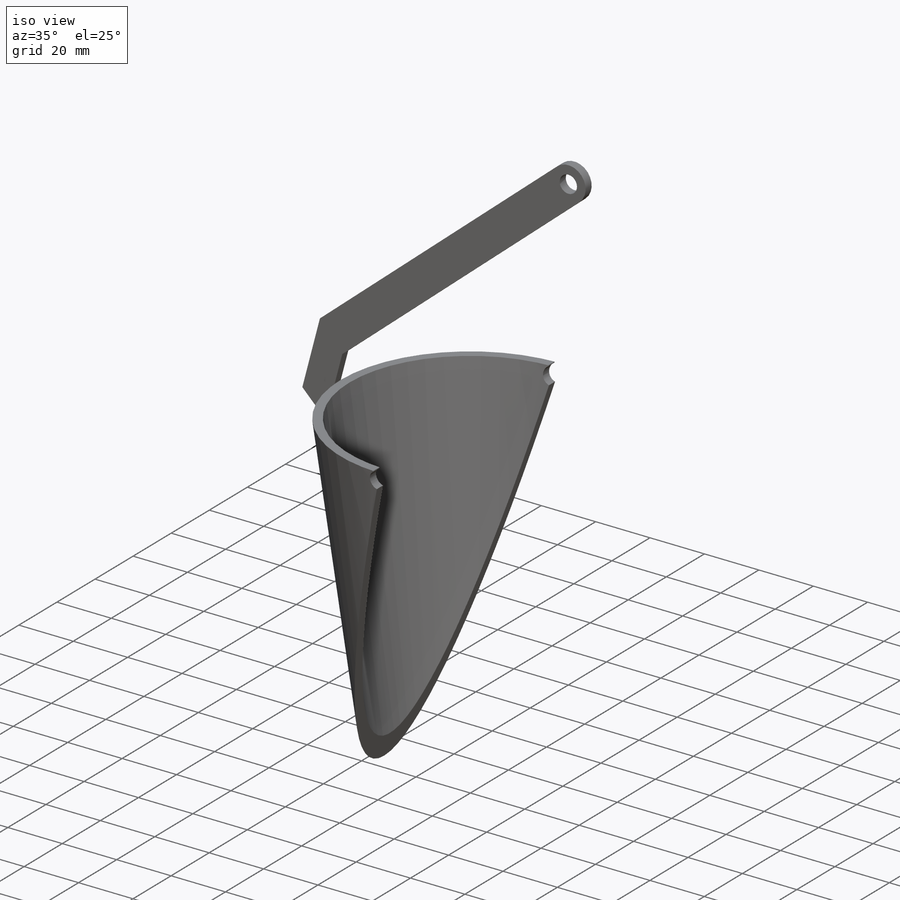
[diagram: iso view]
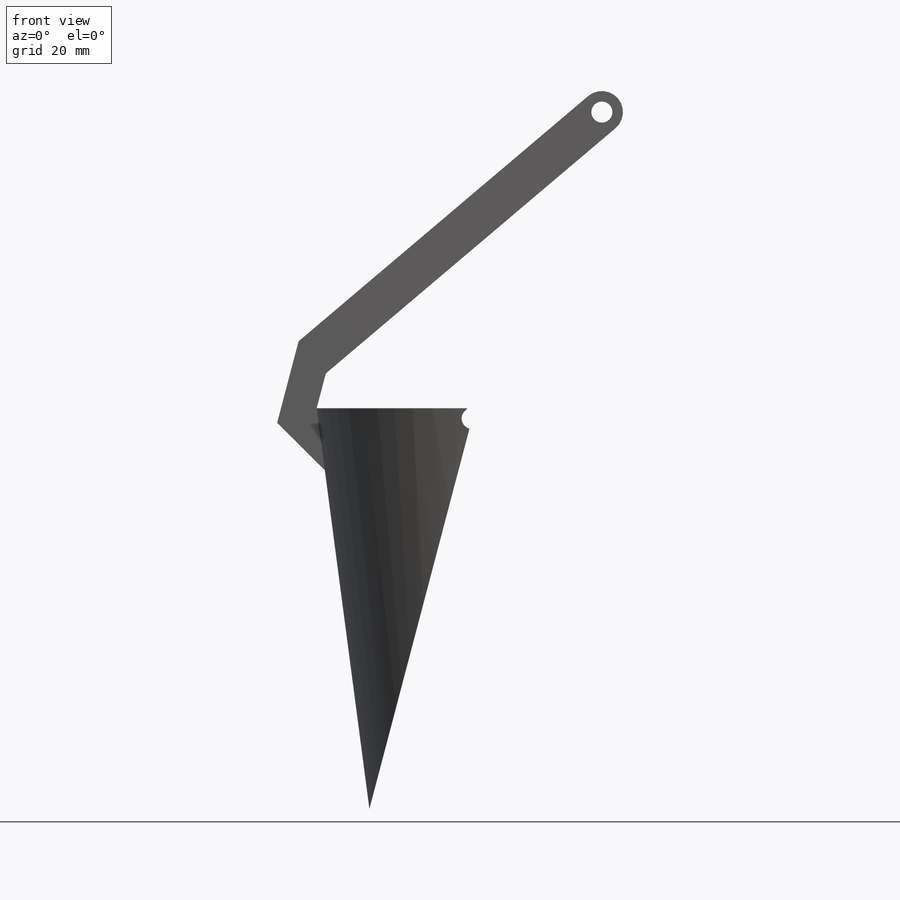
[diagram: front view]
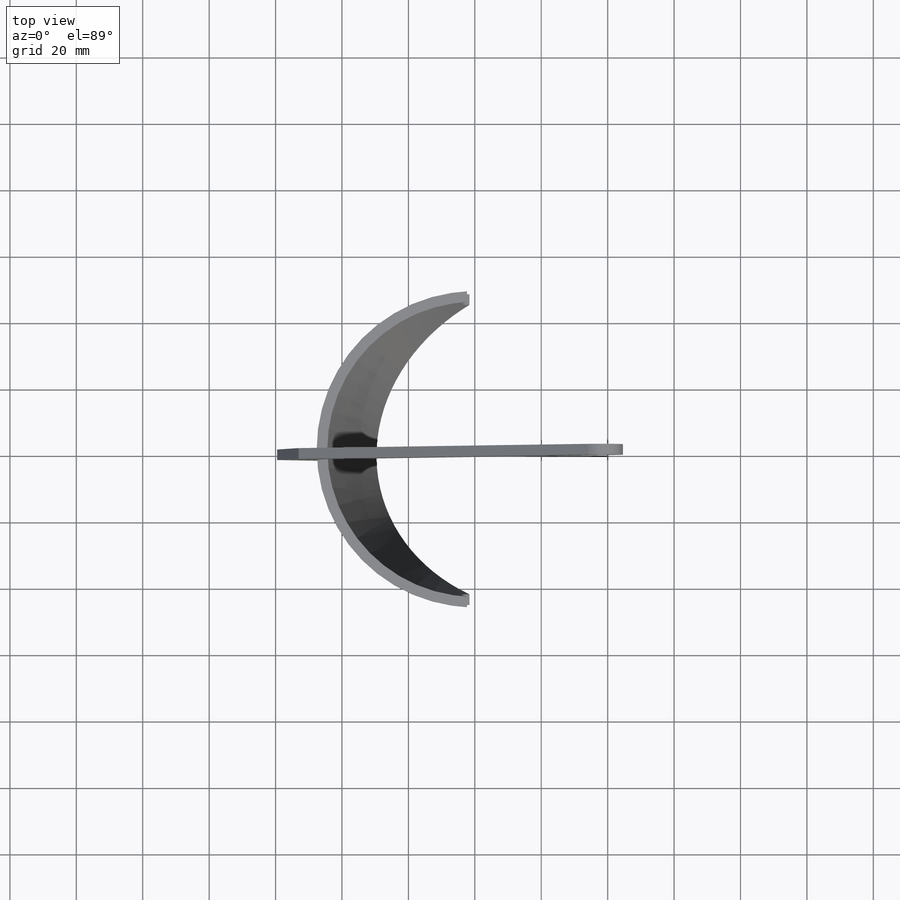
[diagram: top view]
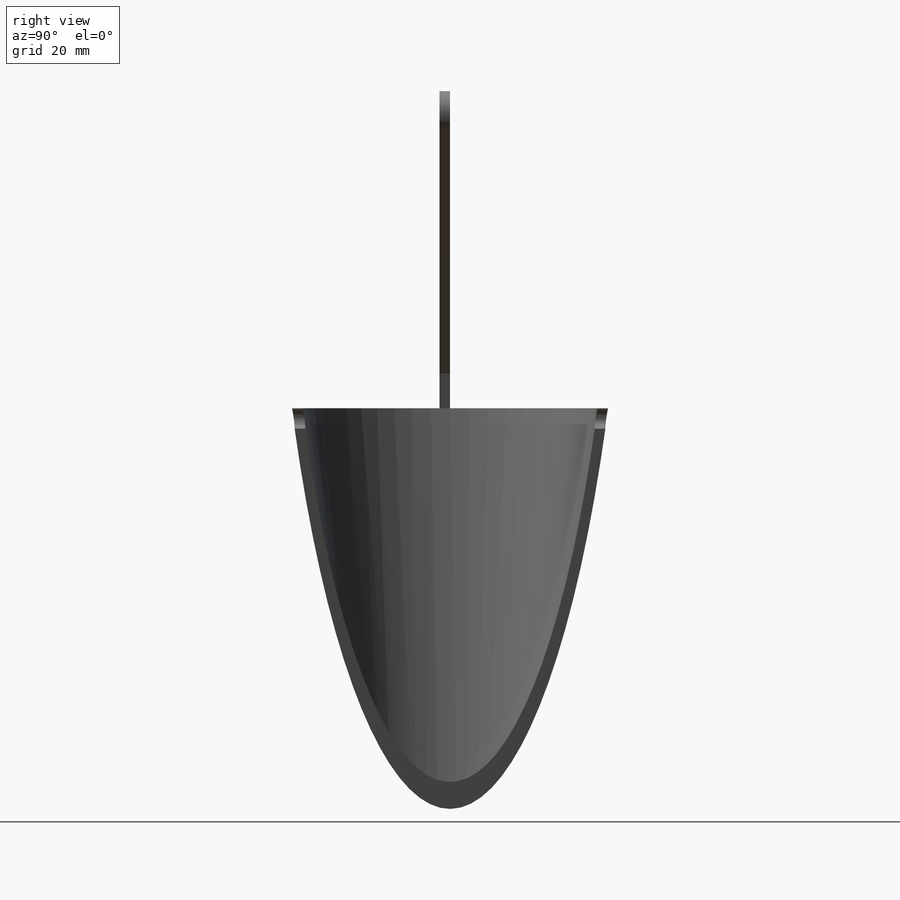
[diagram: right view]
SOLIDWORKS PART (.sldprt)
format: sldprt  version: not decoded by parser v0  size: 214,016 bytes
history: native  units: mm
features: sketch x6, cut_extrude x4, material x1, revolve x1, extrude x1 (+12 scaffold rows collapsed)
feature tree (25):
  scaffold x12  (default folders/planes/origin — collapsed)
  material  "Material <not specified>"
  sketch  "Sketch4"  dims[c1.D1=47.625mm c1.D2=31.75mm c1.D3=120.65mm c1.D4=~3.702902mm c2.D1=120.65mm c2.D3=47.625mm c2.D4=3.175mm c2.D5=3.175mm]
  revolve  "Revolve2"  Angle=360deg
  sketch  "Sketch5"  dims[D1=63.5mm]
  cut_extrude  "Cut-Extrude2"  [1 undecoded]
  sketch  "Sketch6"  dims[D1=6.35mm]
  cut_extrude  "Cut-Extrude3"  [1 undecoded]
  sketch  "Sketch7"  dims[D1=~3.555725mm]
  cut_extrude  "Cut-Extrude4"  [1 undecoded]
  sketch  "Sketch8"  dims[D1=~126.906389mm D2=~53.582698mm]
  cut_extrude  "Cut-Extrude5"  [1 undecoded]
  sketch  "Sketch9"  dims[c1.D1=~2.897211mm c1.D3=6.35mm c1.D12=~12.700017mm c1.D10=6.35mm c2.D1=12.7mm c2.D2=12.7mm c2.D4=25.4mm c2.D5=6.35mm c2.D6=~7.921396mm c3.D6=90.0deg c4.D6=6.35mm c4.D7=~19.17856mm c4.D2=12.7mm c5.D7=12.7mm c5.D5=6.35mm c5.D6=6.35mm c5.D2=120.65mm c6.D5=6.35mm c6.D6=6.35mm c6.D7=12.7mm c6.D8=~24.563693mm c7.D8=145.0deg c7.D9=~22.16034mm c8.D9=145.0deg c8.D10=120.65mm c8.D11=~13.585589mm c9.D11=120.0deg c9.D2=114.3mm c9.D5=114.3mm]
  extrude  "Boss-Extrude1"  Depth=3.175mm
decode coverage: 8 of 12 modeling features carry decoded parameters
note: ~ marks probable driven/reference dimensions
note: 4 parameter values undecoded
summary: no parameter record found for 4 features
note: suppression state not decoded; provenance and decode notes live in map.json
